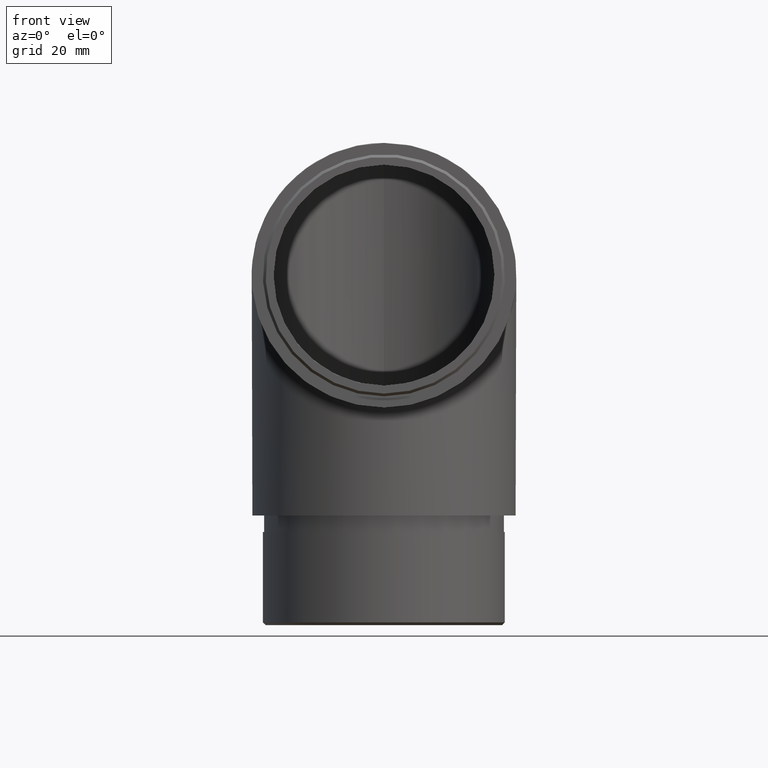
[diagram: clean part render]
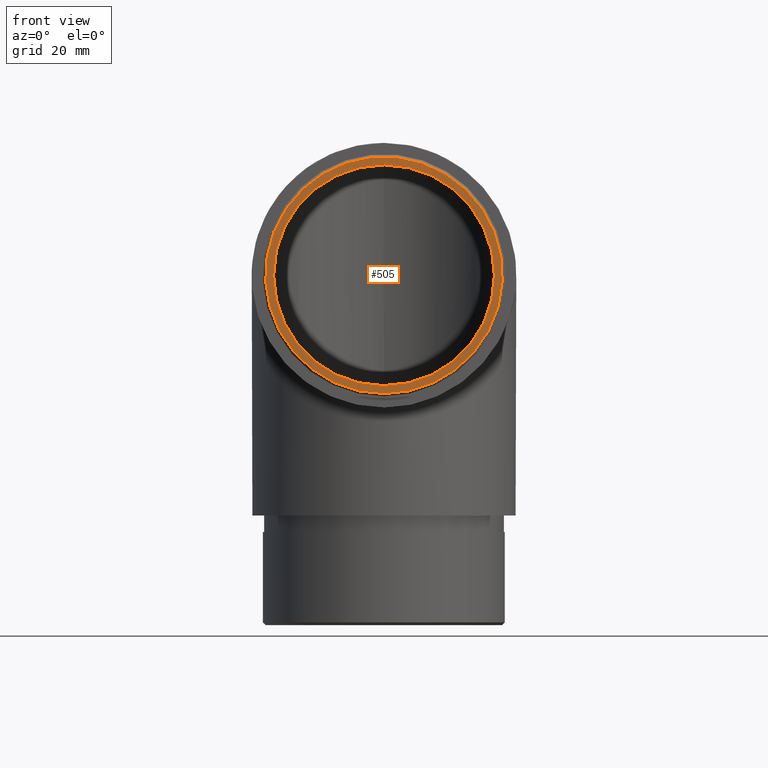
[diagram: same view with one face highlighted and labeled with its STEP entity id]
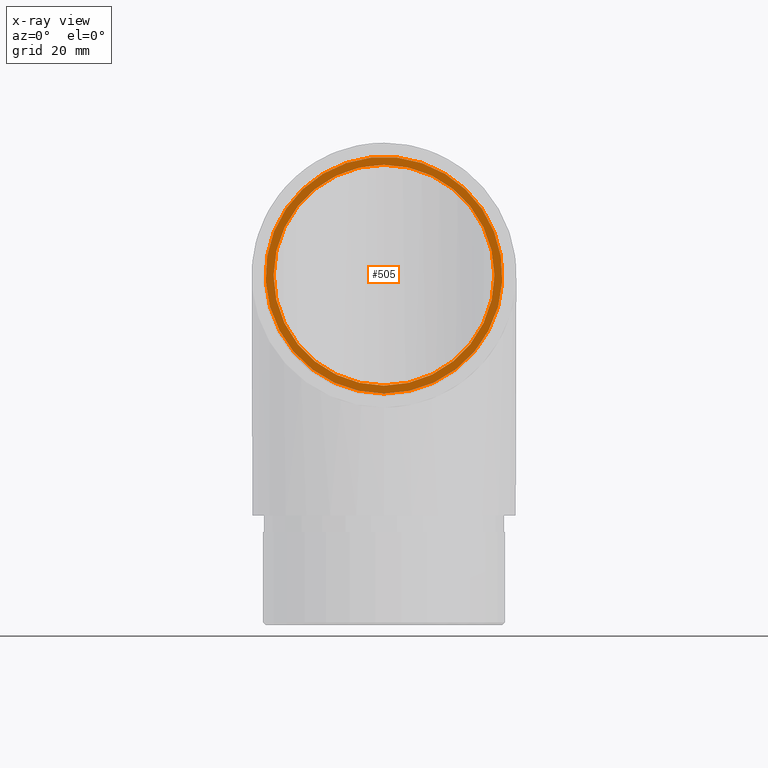
[diagram: x-ray of the same camera — body ghosted, the highlighted face saturated]
A machine part, front view. The second image highlights one B-rep face of the part: STEP entity #505.
The next image is the same camera in x-ray: the body ghosted, the highlighted face saturated — about 0% of this face is hidden behind the body in this view.
In plain terms, the highlighted planar face has unit normal (0, -1, 0).
Its self-contained STEP definition (entity closure, byte-faithful):
#222 = VERTEX_POINT ( 'NONE', #5374 ) ;
#505 = ADVANCED_FACE ( 'NONE', ( #9193, #2192 ), #985, .T. ) ;
#976 = AXIS2_PLACEMENT_3D ( 'NONE', #1696, #7654, #2518 ) ;
#985 = PLANE ( 'NONE',  #976 ) ;
#1198 = EDGE_CURVE ( 'NONE', #4348, #4348, #3385, .T. ) ;
#1696 = CARTESIAN_POINT ( 'NONE',  ( 0.0000000000000000000, -20.00000000000000000, 0.0000000000000000000 ) ) ;
#2192 = FACE_BOUND ( 'NONE', #4732, .T. ) ;
#2388 = DIRECTION ( 'NONE',  ( 0.0000000000000000000, -1.000000000000000000, 0.0000000000000000000 ) ) ;
#2518 = DIRECTION ( 'NONE',  ( 0.0000000000000000000, -0.0000000000000000000, -1.000000000000000000 ) ) ;
#3052 = DIRECTION ( 'NONE',  ( 0.0000000000000000000, 0.0000000000000000000, -1.000000000000000000 ) ) ;
#3249 = DIRECTION ( 'NONE',  ( 0.0000000000000000000, 0.0000000000000000000, -1.000000000000000000 ) ) ;
#3250 = CIRCLE ( 'NONE', #6812, 21.60000000000002300 ) ;
#3385 = CIRCLE ( 'NONE', #8804, 20.15000000000000600 ) ;
#3769 = EDGE_LOOP ( 'NONE', ( #5892 ) ) ;
#3839 = EDGE_CURVE ( 'NONE', #222, #222, #3250, .T. ) ;
#4348 = VERTEX_POINT ( 'NONE', #7212 ) ;
#4732 = EDGE_LOOP ( 'NONE', ( #5966 ) ) ;
#4771 = CARTESIAN_POINT ( 'NONE',  ( 0.0000000000000000000, -20.00000000000000000, 0.0000000000000000000 ) ) ;
#5374 = CARTESIAN_POINT ( 'NONE',  ( 0.0000000000000000000, -20.00000000000000000, -21.60000000000002300 ) ) ;
#5892 = ORIENTED_EDGE ( 'NONE', *, *, #3839, .T. ) ;
#5966 = ORIENTED_EDGE ( 'NONE', *, *, #1198, .F. ) ;
#6812 = AXIS2_PLACEMENT_3D ( 'NONE', #7491, #2388, #3249 ) ;
#7212 = CARTESIAN_POINT ( 'NONE',  ( 0.0000000000000000000, -20.00000000000000000, -20.15000000000000600 ) ) ;
#7491 = CARTESIAN_POINT ( 'NONE',  ( 0.0000000000000000000, -20.00000000000000000, 0.0000000000000000000 ) ) ;
#7654 = DIRECTION ( 'NONE',  ( 0.0000000000000000000, -1.000000000000000000, 0.0000000000000000000 ) ) ;
#8189 = DIRECTION ( 'NONE',  ( 0.0000000000000000000, -1.000000000000000000, 0.0000000000000000000 ) ) ;
#8804 = AXIS2_PLACEMENT_3D ( 'NONE', #4771, #8189, #3052 ) ;
#9193 = FACE_OUTER_BOUND ( 'NONE', #3769, .T. ) ;